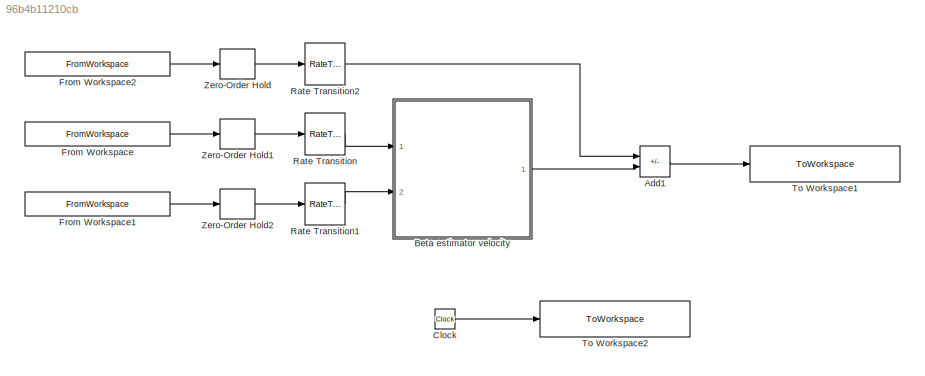
MODEL slx_96b4b11210cb
KIND model
CONFIG AbsTol = 1e-10
CONFIG EnableMultiTasking = off
CONFIG FixedStep = 1e-3
CONFIG MaxStep = auto
CONFIG MinStep = auto
CONFIG RelTol = 1e-6
CONFIG SampleTimeConstraint = Unconstrained
CONFIG SolverName = VariableStepAuto
CONFIG StartTime = 0.0
CONFIG StopTime = 10
BLOCK [Sum] Add1
  IconShape = rectangular
  Inputs = -+
  Ports = [2, 1]
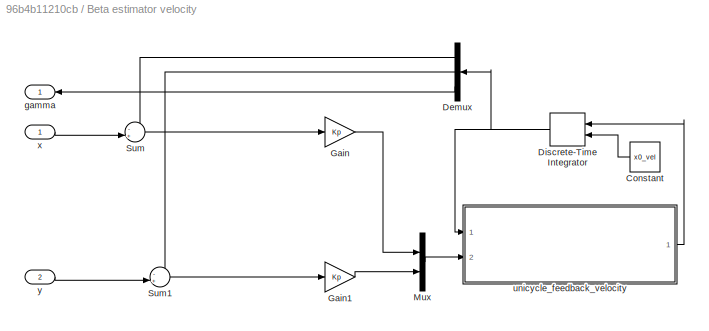
BLOCK [SubSystem] Beta estimator velocity
  Ports = [2, 1]
  RequestExecContextInheritance = off
BLOCK [Constant] Beta estimator velocity/Constant
  Value = x0_vel
BLOCK [Demux] Beta estimator velocity/Demux
  Outputs = 3
  Ports = [1, 3]
BLOCK [DiscreteIntegrator] Beta estimator velocity/Discrete-Time Integrator
  ICPrevOutput = DiscIntNeverNeededParam
  ICPrevScaledInput = DiscIntNeverNeededParam
  InitialConditionSetting = Auto
  InitialConditionSource = external
  Ports = [2, 1]
  SampleTime = Ts
BLOCK [Gain] Beta estimator velocity/Gain
  Gain = Kp
BLOCK [Gain] Beta estimator velocity/Gain1
  Gain = Kp
BLOCK [Mux] Beta estimator velocity/Mux
  DisplayOption = bar
  Inputs = 2
  Ports = [2, 1]
BLOCK [Sum] Beta estimator velocity/Sum
  Inputs = -+|
  Ports = [2, 1]
BLOCK [Sum] Beta estimator velocity/Sum1
  Inputs = -+|
  Ports = [2, 1]
BLOCK [Outport] Beta estimator velocity/gamma
  VectorParamsAs1DForOutWhenUnconnected = off
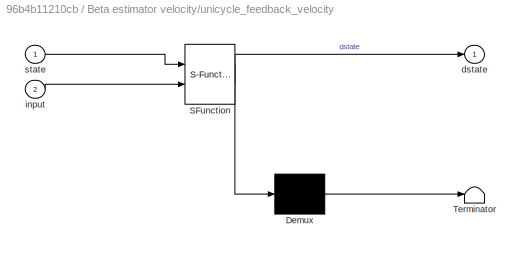
BLOCK [SubSystem] Beta estimator velocity/unicycle_feedback_velocity
  ErrorFcn = Stateflow.Translate.translate
  PermitHierarchicalResolution = ExplicitOnly
  Ports = [2, 1]
  RequestExecContextInheritance = off
  SFBlockType = MATLAB Function
  TreatAsAtomicUnit = on
BLOCK [Demux] Beta estimator velocity/unicycle_feedback_velocity/ Demux 
  Outputs = 1
  Ports = [1, 1]
BLOCK [S-Function] Beta estimator velocity/unicycle_feedback_velocity/ SFunction 
  EnableBusSupport = on
  FunctionName = sf_sfun
  Parameters = p
  PortCounts = [2 2]
  Ports = [2, 2]
  SFcnIsStateOwnerBlock = off
  SFunctionDeploymentMode = off
  Tag = Stateflow S-Function 1
BLOCK [Terminator] Beta estimator velocity/unicycle_feedback_velocity/ Terminator 
BLOCK [Outport] Beta estimator velocity/unicycle_feedback_velocity/dstate
  VectorParamsAs1DForOutWhenUnconnected = off
BLOCK [Inport] Beta estimator velocity/unicycle_feedback_velocity/input
  Port = 2
BLOCK [Inport] Beta estimator velocity/unicycle_feedback_velocity/state
BLOCK [Inport] Beta estimator velocity/x
BLOCK [Inport] Beta estimator velocity/y
  Port = 2
BLOCK [Clock] Clock
BLOCK [FromWorkspace] From Workspace
  OutputAfterFinalValue = Holding final value
  VariableName = [vel_cpp_res.t,vel_cpp_res.x]
BLOCK [FromWorkspace] From Workspace1
  OutputAfterFinalValue = Holding final value
  VariableName = [vel_cpp_res.t,vel_cpp_res.y]
BLOCK [FromWorkspace] From Workspace2
  OutputAfterFinalValue = Holding final value
  VariableName = [vel_cpp_res.t,vel_cpp_res.psi]
BLOCK [RateTransition] Rate Transition
  OutPortSampleTime = Ts
BLOCK [RateTransition] Rate Transition1
  OutPortSampleTime = Ts
BLOCK [RateTransition] Rate Transition2
  OutPortSampleTime = Ts
BLOCK [ToWorkspace] To Workspace1
  FixptAsFi = on
  MaxDataPoints = inf
  Ports = [1]
  SampleTime = Ts
  Save2DSignal = 2-D array (concatenate along first dimension)
  VariableName = beta_est
BLOCK [ToWorkspace] To Workspace2
  FixptAsFi = on
  MaxDataPoints = inf
  Ports = [1]
  SampleTime = 0.001
  Save2DSignal = 2-D array (concatenate along first dimension)
  VariableName = t
BLOCK [ZeroOrderHold] Zero-Order Hold
  SampleTime = 0.01
BLOCK [ZeroOrderHold] Zero-Order Hold1
  SampleTime = 0.01
BLOCK [ZeroOrderHold] Zero-Order Hold2
  SampleTime = 0.01
LINE Add1:1 -> To Workspace1:1
LINE Beta estimator velocity/Constant:1 -> Beta estimator velocity/Discrete-Time Integrator:2
LINE Beta estimator velocity/Demux:1 -> Beta estimator velocity/Sum:1
LINE Beta estimator velocity/Demux:2 -> Beta estimator velocity/Sum1:1
LINE Beta estimator velocity/Demux:3 -> Beta estimator velocity/gamma:1
NET Beta estimator velocity/Discrete-Time Integrator:1 -> Beta estimator velocity/Demux:1, Beta estimator velocity/unicycle_feedback_velocity:1
LINE Beta estimator velocity/Gain1:1 -> Beta estimator velocity/Mux:2
LINE Beta estimator velocity/Gain:1 -> Beta estimator velocity/Mux:1
LINE Beta estimator velocity/Mux:1 -> Beta estimator velocity/unicycle_feedback_velocity:2
LINE Beta estimator velocity/Sum1:1 -> Beta estimator velocity/Gain1:1
LINE Beta estimator velocity/Sum:1 -> Beta estimator velocity/Gain:1
LINE Beta estimator velocity/unicycle_feedback_velocity:1 -> Beta estimator velocity/Discrete-Time Integrator:1
LINE Beta estimator velocity/x:1 -> Beta estimator velocity/Sum:2
LINE Beta estimator velocity/y:1 -> Beta estimator velocity/Sum1:2
LINE Beta estimator velocity:1 -> Add1:2
LINE Clock:1 -> To Workspace2:1
LINE From Workspace1:1 -> Zero-Order Hold2:1
LINE From Workspace2:1 -> Zero-Order Hold:1
LINE From Workspace:1 -> Zero-Order Hold1:1
LINE Rate Transition1:1 -> Beta estimator velocity:2
LINE Rate Transition2:1 -> Add1:1
LINE Rate Transition:1 -> Beta estimator velocity:1
LINE Zero-Order Hold1:1 -> Rate Transition:1
LINE Zero-Order Hold2:1 -> Rate Transition1:1
LINE Zero-Order Hold:1 -> Rate Transition2:1
note: NET lines group one-source signal fan-out (src -> all destinations, sorted); 1:1 wires keep LINE
CHART Beta estimator velocity/unicycle_feedback_velocity states=1 transitions=1
  STATE_LABEL 'eML_blk_kernel()'
  STATE_LABEL 'SCRIPT:\nfunction dstate = unicycle_feedback_velocity(state,input,p)\n\n% State and input variables\nx     = state(1);\ny     = state(2);\ngamma = state(3); % theta+beta\n\nvxp   = input(1);\nvyp   = input(2);\n\n\n% Model equations\ndstate = zeros(3,1);\ndstate(1) = vxp*cos(gamma)^2+vyp*sin(gamma)*cos(gamma);\ndstate(2) = vxp*sin(gamma)*cos(gamma)+vyp*sin(gamma)^2;\ndstate(3) = (vyp*cos(gamma)-vxp*sin(gamma))/p;...<+2ch>'
CHART  states=0 transitions=0
